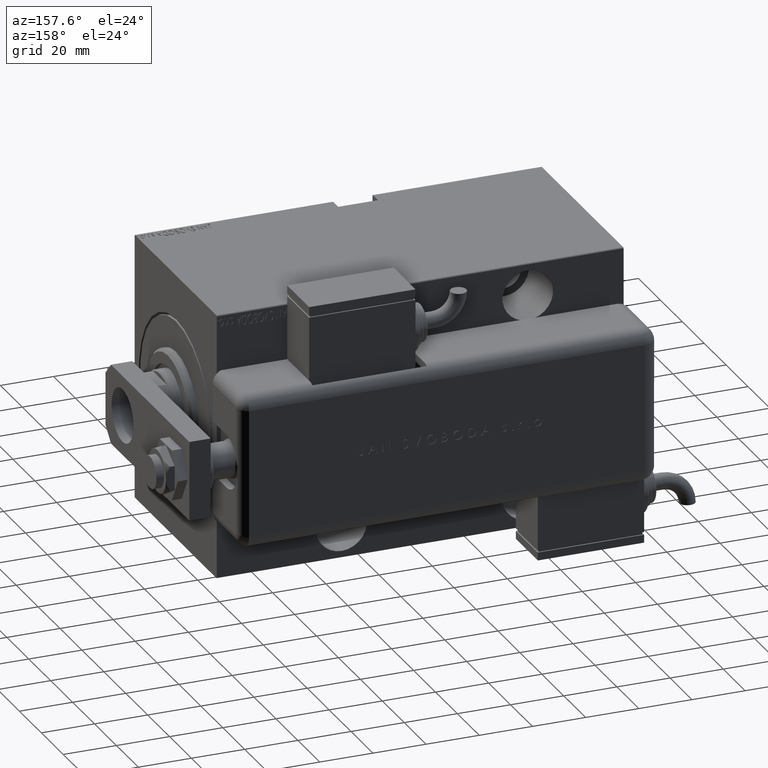
[diagram: clean part render]
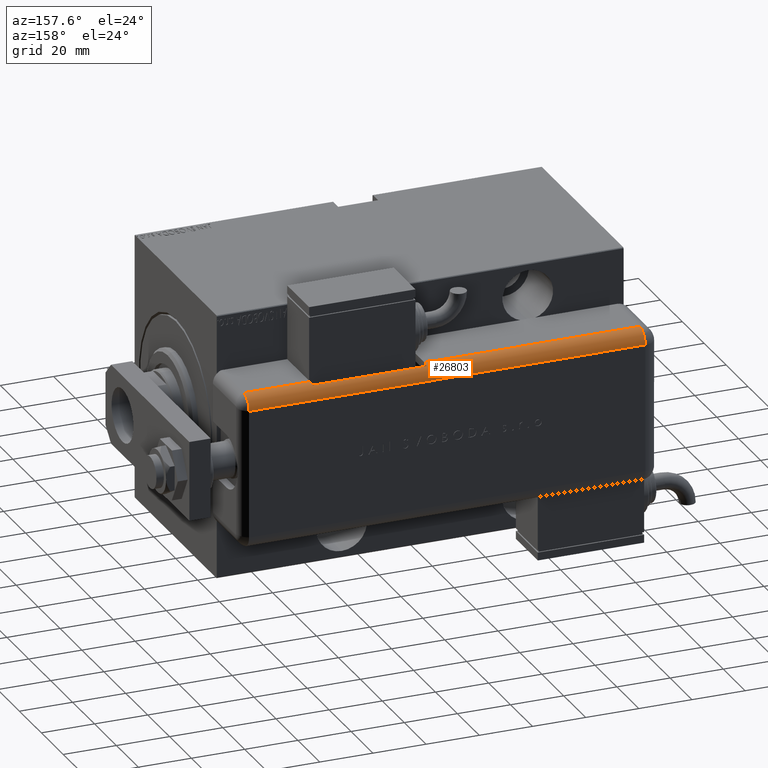
[diagram: same view with one face highlighted and labeled with its STEP entity id]
A machine part, auxiliary view. The second image highlights one B-rep face of the part: STEP entity #26803.
In plain terms, the highlighted cylindrical surface (edge-blend (fillet) strip) has radius 5 mm, axis along (-1, -0, -0).
Its self-contained STEP definition (entity closure, byte-faithful):
#22 = CARTESIAN_POINT ( 'NONE',  ( -23.99999999999999645, 20.79999999999998295, 129.0000000000000000 ) ) ;
#647 = ORIENTED_EDGE ( 'NONE', *, *, #4888, .F. ) ;
#2391 = VECTOR ( 'NONE', #14764, 1000.000000000000000 ) ;
#3867 = EDGE_CURVE ( 'NONE', #36498, #52551, #22285, .T. ) ;
#3903 = EDGE_LOOP ( 'NONE', ( #26420, #5429, #21237, #58407, #36090, #647, #54892, #47136 ) ) ;
#4231 = EDGE_CURVE ( 'NONE', #39024, #12966, #31852, .T. ) ;
#4776 = DIRECTION ( 'NONE',  ( 0.000000000000000000, -0.000000000000000000, -1.000000000000000000 ) ) ;
#4888 = EDGE_CURVE ( 'NONE', #37688, #24561, #19799, .T. ) ;
#5083 = EDGE_CURVE ( 'NONE', #52551, #47899, #17607, .T. ) ;
#5429 = ORIENTED_EDGE ( 'NONE', *, *, #56291, .F. ) ;
#7605 = AXIS2_PLACEMENT_3D ( 'NONE', #13704, #9833, #40702 ) ;
#9833 = DIRECTION ( 'NONE',  ( 0.000000000000000000, 0.000000000000000000, -1.000000000000000000 ) ) ;
#12793 = VECTOR ( 'NONE', #18480, 1000.000000000000000 ) ;
#12966 = VERTEX_POINT ( 'NONE', #13630 ) ;
#13113 = FACE_OUTER_BOUND ( 'NONE', #3903, .T. ) ;
#13208 = AXIS2_PLACEMENT_3D ( 'NONE', #15326, #24264, #25138 ) ;
#13437 = CARTESIAN_POINT ( 'NONE',  ( -28.99999999999999645, 20.79999999999998295, 154.0000000000000000 ) ) ;
#13630 = CARTESIAN_POINT ( 'NONE',  ( -28.99999999999999645, 20.79999999999998295, 129.0000000000000000 ) ) ;
#13704 = CARTESIAN_POINT ( 'NONE',  ( -23.99999999999999645, 20.79999999999998295, 154.0000000000000000 ) ) ;
#13867 = VERTEX_POINT ( 'NONE', #38530 ) ;
#14764 = DIRECTION ( 'NONE',  ( -0.000000000000000000, -0.000000000000000000, 1.000000000000000000 ) ) ;
#15283 = CARTESIAN_POINT ( 'NONE',  ( -28.99999999999999645, 20.79999999999998295, 86.00000000000000000 ) ) ;
#15326 = CARTESIAN_POINT ( 'NONE',  ( -23.99999999999999645, 20.79999999999998295, 5.000000000000004441 ) ) ;
#17412 = VECTOR ( 'NONE', #24682, 1000.000000000000000 ) ;
#17607 = LINE ( 'NONE', #22067, #32737 ) ;
#18480 = DIRECTION ( 'NONE',  ( 0.000000000000000000, 0.000000000000000000, -1.000000000000000000 ) ) ;
#19799 = LINE ( 'NONE', #23987, #2391 ) ;
#20425 = EDGE_CURVE ( 'NONE', #37688, #47899, #57738, .T. ) ;
#21237 = ORIENTED_EDGE ( 'NONE', *, *, #37557, .F. ) ;
#22067 = CARTESIAN_POINT ( 'NONE',  ( -28.99999999999999645, 20.79999999999998295, 154.0000000000000000 ) ) ;
#22285 = CIRCLE ( 'NONE', #43098, 5.000000000000000888 ) ;
#23987 = CARTESIAN_POINT ( 'NONE',  ( -23.99999999999999645, 25.79999999999998295, 154.0000000000000000 ) ) ;
#24264 = DIRECTION ( 'NONE',  ( -0.000000000000000000, -0.000000000000000000, 1.000000000000000000 ) ) ;
#24561 = VERTEX_POINT ( 'NONE', #30863 ) ;
#24682 = DIRECTION ( 'NONE',  ( 0.000000000000000000, 0.000000000000000000, -1.000000000000000000 ) ) ;
#25138 = DIRECTION ( 'NONE',  ( -1.000000000000000000, 0.000000000000000000, 0.000000000000000000 ) ) ;
#25145 = AXIS2_PLACEMENT_3D ( 'NONE', #57060, #39590, #57651 ) ;
#25555 = LINE ( 'NONE', #29434, #17412 ) ;
#26180 = CARTESIAN_POINT ( 'NONE',  ( -28.48998886412872267, 22.99999999999998934, 86.00000000000000000 ) ) ;
#26420 = ORIENTED_EDGE ( 'NONE', *, *, #3867, .F. ) ;
#26803 = ADVANCED_FACE ( 'NONE', ( #13113 ), #31218, .T. ) ;
#27475 = DIRECTION ( 'NONE',  ( -1.000000000000000000, 4.163336342344336238E-15, 0.000000000000000000 ) ) ;
#27977 = CIRCLE ( 'NONE', #25145, 5.000000000000000888 ) ;
#29434 = CARTESIAN_POINT ( 'NONE',  ( -28.48998886412872267, 22.99999999999998934, 154.0000000000000000 ) ) ;
#30863 = CARTESIAN_POINT ( 'NONE',  ( -23.99999999999999645, 25.79999999999998295, 154.0000000000000000 ) ) ;
#31218 = CYLINDRICAL_SURFACE ( 'NONE', #7605, 5.000000000000000888 ) ;
#31852 = LINE ( 'NONE', #13437, #12793 ) ;
#32737 = VECTOR ( 'NONE', #44004, 1000.000000000000000 ) ;
#35657 = DIRECTION ( 'NONE',  ( 1.000000000000000000, 0.000000000000000000, 0.000000000000000000 ) ) ;
#36090 = ORIENTED_EDGE ( 'NONE', *, *, #36141, .F. ) ;
#36141 = EDGE_CURVE ( 'NONE', #24561, #39024, #27977, .T. ) ;
#36498 = VERTEX_POINT ( 'NONE', #26180 ) ;
#37557 = EDGE_CURVE ( 'NONE', #12966, #13867, #52621, .T. ) ;
#37688 = VERTEX_POINT ( 'NONE', #45985 ) ;
#38428 = CARTESIAN_POINT ( 'NONE',  ( -28.99999999999999645, 20.79999999999998295, 154.0000000000000000 ) ) ;
#38530 = CARTESIAN_POINT ( 'NONE',  ( -28.48998886412872267, 22.99999999999998934, 129.0000000000000000 ) ) ;
#39024 = VERTEX_POINT ( 'NONE', #38428 ) ;
#39590 = DIRECTION ( 'NONE',  ( -0.000000000000000000, -0.000000000000000000, 1.000000000000000000 ) ) ;
#40702 = DIRECTION ( 'NONE',  ( -1.000000000000000000, 0.000000000000000000, 0.000000000000000000 ) ) ;
#40812 = CARTESIAN_POINT ( 'NONE',  ( -23.99999999999999645, 20.79999999999998295, 86.00000000000000000 ) ) ;
#43098 = AXIS2_PLACEMENT_3D ( 'NONE', #40812, #49987, #27475 ) ;
#44004 = DIRECTION ( 'NONE',  ( 0.000000000000000000, 0.000000000000000000, -1.000000000000000000 ) ) ;
#45985 = CARTESIAN_POINT ( 'NONE',  ( -23.99999999999999645, 25.79999999999998295, 5.000000000000004441 ) ) ;
#47136 = ORIENTED_EDGE ( 'NONE', *, *, #5083, .F. ) ;
#47899 = VERTEX_POINT ( 'NONE', #55999 ) ;
#49987 = DIRECTION ( 'NONE',  ( -0.000000000000000000, -0.000000000000000000, 1.000000000000000000 ) ) ;
#52551 = VERTEX_POINT ( 'NONE', #15283 ) ;
#52621 = CIRCLE ( 'NONE', #57318, 5.000000000000000888 ) ;
#54892 = ORIENTED_EDGE ( 'NONE', *, *, #20425, .T. ) ;
#55999 = CARTESIAN_POINT ( 'NONE',  ( -28.99999999999999645, 20.79999999999998295, 5.000000000000004441 ) ) ;
#56291 = EDGE_CURVE ( 'NONE', #13867, #36498, #25555, .T. ) ;
#57060 = CARTESIAN_POINT ( 'NONE',  ( -23.99999999999999645, 20.79999999999998295, 154.0000000000000000 ) ) ;
#57318 = AXIS2_PLACEMENT_3D ( 'NONE', #22, #4776, #35657 ) ;
#57651 = DIRECTION ( 'NONE',  ( -1.000000000000000000, 0.000000000000000000, 0.000000000000000000 ) ) ;
#57738 = CIRCLE ( 'NONE', #13208, 5.000000000000000888 ) ;
#58407 = ORIENTED_EDGE ( 'NONE', *, *, #4231, .F. ) ;